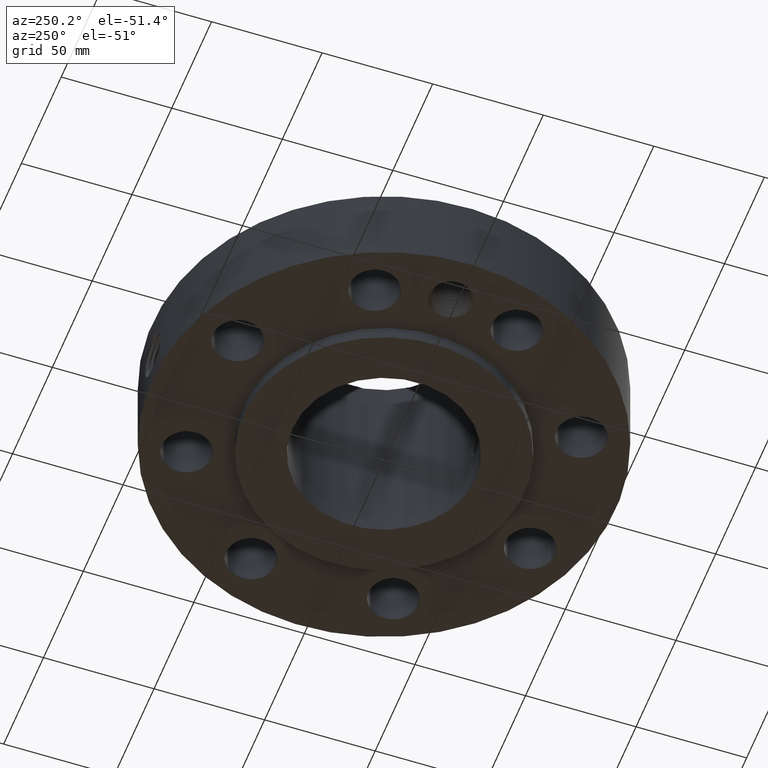
[diagram: clean part render]
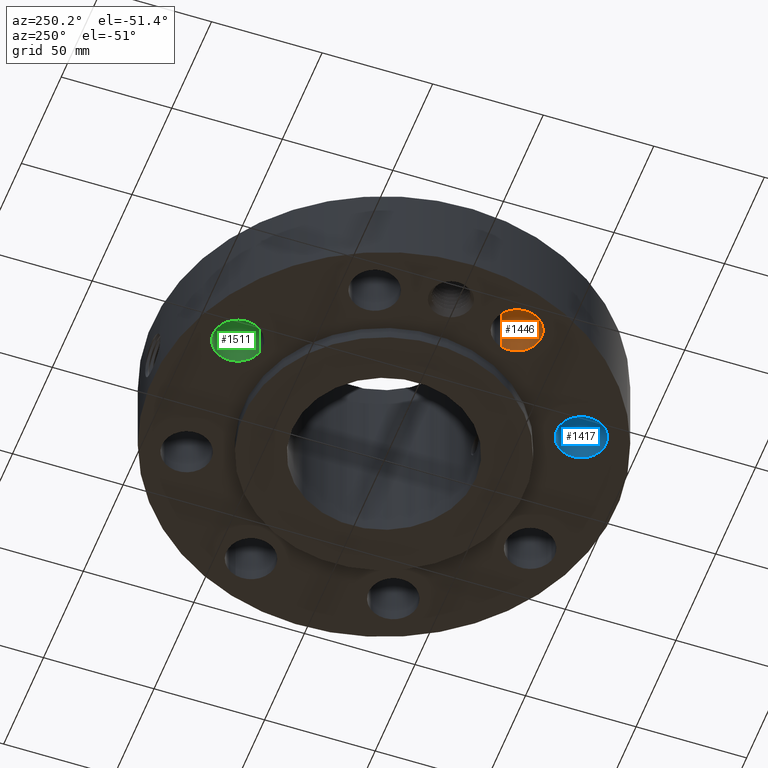
[diagram: same view with three faces highlighted in distinct colors, each labeled with its STEP entity id]
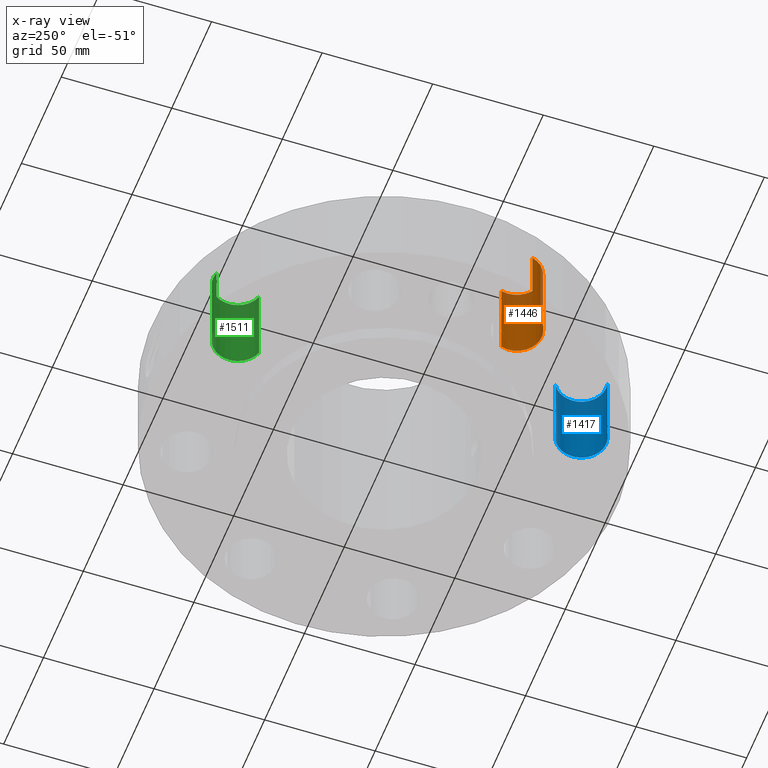
[diagram: x-ray of the same camera — body ghosted, the three highlighted faces saturated]
A machine part, auxiliary view with three faces highlighted in distinct colors.
The next image is the same camera in x-ray (body ghosted, the three faces saturated) — at least one of them is partly hidden behind the body in this view.
Their STEP definitions:

[orange] entity #1446 — the highlighted cylindrical surface (edge-blend (fillet) strip) has radius 11.176 mm, axis along (-0, 0, -1).
#296=AXIS2_PLACEMENT_3D('Circle Axis2P3D',#294,#295,$) ;
#622=AXIS2_PLACEMENT_3D('Circle Axis2P3D',#620,#621,$) ;
#1428=AXIS2_PLACEMENT_3D('Cylinder Axis2P3D',#1425,#1426,#1427) ;
#294=CARTESIAN_POINT('Axis2P3D Location',(-3.05804125262,-1.26668216113,0.250000000001)) ;
#298=CARTESIAN_POINT('Vertex',(-2.63583941543,-1.14280476743,0.250000000001)) ;
#300=CARTESIAN_POINT('Vertex',(-3.48024308982,-1.39055955484,0.250000000001)) ;
#615=CARTESIAN_POINT('Vertex',(-3.48024308982,-1.39055955484,1.75000000001)) ;
#617=CARTESIAN_POINT('Vertex',(-2.63583941543,-1.14280476743,1.75000000001)) ;
#620=CARTESIAN_POINT('Axis2P3D Location',(-3.05804125262,-1.26668216113,1.75000000001)) ;
#1425=CARTESIAN_POINT('Axis2P3D Location',(-3.05804125262,-1.26668216113,1.74606299213)) ;
#1430=CARTESIAN_POINT('Line Origine',(-2.63583941543,-1.14280476743,1.)) ;
#1435=CARTESIAN_POINT('Line Origine',(-3.48024308982,-1.39055955484,1.)) ;
#295=DIRECTION('Axis2P3D Direction',(0.,0.,-0.0393700787402)) ;
#621=DIRECTION('Axis2P3D Direction',(0.,0.,-0.0393700787402)) ;
#1426=DIRECTION('Axis2P3D Direction',(-0.,0.,-0.0393700787402)) ;
#1427=DIRECTION('Axis2P3D XDirection',(-0.0377775444876,-0.0110842335096,0.)) ;
#1431=DIRECTION('Vector Direction',(0.,0.,-0.0393700787402)) ;
#1436=DIRECTION('Vector Direction',(0.,0.,-0.0393700787402)) ;
#1432=VECTOR('Line Direction',#1431,0.0393700787402) ;
#1437=VECTOR('Line Direction',#1436,0.0393700787402) ;
#1441=ORIENTED_EDGE('',*,*,#1434,.F.) ;
#1442=ORIENTED_EDGE('',*,*,#302,.T.) ;
#1443=ORIENTED_EDGE('',*,*,#1439,.T.) ;
#1444=ORIENTED_EDGE('',*,*,#624,.F.) ;
#1446=ADVANCED_FACE('PartBody',(#1445),#1429,.F.) ;
#297=CIRCLE('generated circle',#296,0.440000000002) ;
#623=CIRCLE('generated circle',#622,0.440000000002) ;
#1429=CYLINDRICAL_SURFACE('generated cylinder',#1428,0.440000000002) ;
#302=EDGE_CURVE('',#299,#301,#297,.T.) ;
#624=EDGE_CURVE('',#618,#616,#623,.T.) ;
#1434=EDGE_CURVE('',#299,#618,#1433,.F.) ;
#1439=EDGE_CURVE('',#301,#616,#1438,.F.) ;
#1440=EDGE_LOOP('',(#1441,#1442,#1443,#1444)) ;
#1445=FACE_OUTER_BOUND('',#1440,.T.) ;
#1433=LINE('Line',#1430,#1432) ;
#1438=LINE('Line',#1435,#1437) ;
#299=VERTEX_POINT('',#298) ;
#301=VERTEX_POINT('',#300) ;
#616=VERTEX_POINT('',#615) ;
#618=VERTEX_POINT('',#617) ;

[blue] entity #1417 — the highlighted cylindrical surface (edge-blend (fillet) strip) has radius 11.176 mm, axis along (0, -0, -1).
#278=AXIS2_PLACEMENT_3D('Circle Axis2P3D',#276,#277,$) ;
#604=AXIS2_PLACEMENT_3D('Circle Axis2P3D',#602,#603,$) ;
#1399=AXIS2_PLACEMENT_3D('Cylinder Axis2P3D',#1396,#1397,#1398) ;
#276=CARTESIAN_POINT('Axis2P3D Location',(-1.26668216113,-3.05804125262,0.250000000001)) ;
#280=CARTESIAN_POINT('Vertex',(-1.05573492415,-2.67190492539,0.250000000001)) ;
#282=CARTESIAN_POINT('Vertex',(-1.47762939812,-3.44417757986,0.250000000001)) ;
#597=CARTESIAN_POINT('Vertex',(-1.47762939812,-3.44417757986,1.75000000001)) ;
#599=CARTESIAN_POINT('Vertex',(-1.05573492415,-2.67190492539,1.75000000001)) ;
#602=CARTESIAN_POINT('Axis2P3D Location',(-1.26668216113,-3.05804125262,1.75000000001)) ;
#1396=CARTESIAN_POINT('Axis2P3D Location',(-1.26668216113,-3.05804125262,1.74606299213)) ;
#1401=CARTESIAN_POINT('Line Origine',(-1.05573492415,-2.67190492539,1.)) ;
#1406=CARTESIAN_POINT('Line Origine',(-1.47762939812,-3.44417757986,1.)) ;
#277=DIRECTION('Axis2P3D Direction',(0.,0.,-0.0393700787402)) ;
#603=DIRECTION('Axis2P3D Direction',(0.,0.,-0.0393700787402)) ;
#1397=DIRECTION('Axis2P3D Direction',(0.,-0.,-0.0393700787402)) ;
#1398=DIRECTION('Axis2P3D XDirection',(-0.0188750212049,-0.0345504945626,0.)) ;
#1402=DIRECTION('Vector Direction',(0.,0.,-0.0393700787402)) ;
#1407=DIRECTION('Vector Direction',(0.,0.,-0.0393700787402)) ;
#1403=VECTOR('Line Direction',#1402,0.0393700787402) ;
#1408=VECTOR('Line Direction',#1407,0.0393700787402) ;
#1412=ORIENTED_EDGE('',*,*,#1405,.F.) ;
#1413=ORIENTED_EDGE('',*,*,#284,.T.) ;
#1414=ORIENTED_EDGE('',*,*,#1410,.T.) ;
#1415=ORIENTED_EDGE('',*,*,#606,.F.) ;
#1417=ADVANCED_FACE('PartBody',(#1416),#1400,.F.) ;
#279=CIRCLE('generated circle',#278,0.440000000002) ;
#605=CIRCLE('generated circle',#604,0.440000000002) ;
#1400=CYLINDRICAL_SURFACE('generated cylinder',#1399,0.440000000002) ;
#284=EDGE_CURVE('',#281,#283,#279,.T.) ;
#606=EDGE_CURVE('',#600,#598,#605,.T.) ;
#1405=EDGE_CURVE('',#281,#600,#1404,.F.) ;
#1410=EDGE_CURVE('',#283,#598,#1409,.F.) ;
#1411=EDGE_LOOP('',(#1412,#1413,#1414,#1415)) ;
#1416=FACE_OUTER_BOUND('',#1411,.T.) ;
#1404=LINE('Line',#1401,#1403) ;
#1409=LINE('Line',#1406,#1408) ;
#281=VERTEX_POINT('',#280) ;
#283=VERTEX_POINT('',#282) ;
#598=VERTEX_POINT('',#597) ;
#600=VERTEX_POINT('',#599) ;

[green] entity #1511 — the highlighted cylindrical surface (edge-blend (fillet) strip) has radius 11.176 mm, axis along (0, 0, -1).
#341=AXIS2_PLACEMENT_3D('Circle Axis2P3D',#339,#340,$) ;
#649=AXIS2_PLACEMENT_3D('Circle Axis2P3D',#647,#648,$) ;
#1486=AXIS2_PLACEMENT_3D('Cylinder Axis2P3D',#1483,#1484,#1485) ;
#334=CARTESIAN_POINT('Vertex',(-1.14280476743,2.63583941543,0.250000000001)) ;
#336=CARTESIAN_POINT('Vertex',(-1.39055955484,3.48024308982,0.250000000001)) ;
#339=CARTESIAN_POINT('Axis2P3D Location',(-1.26668216113,3.05804125262,0.250000000001)) ;
#647=CARTESIAN_POINT('Axis2P3D Location',(-1.26668216113,3.05804125262,1.75000000001)) ;
#651=CARTESIAN_POINT('Vertex',(-1.39055955484,3.48024308982,1.75000000001)) ;
#653=CARTESIAN_POINT('Vertex',(-1.14280476743,2.63583941543,1.75000000001)) ;
#1483=CARTESIAN_POINT('Axis2P3D Location',(-1.26668216113,3.05804125262,1.74606299213)) ;
#1488=CARTESIAN_POINT('Line Origine',(-1.14280476743,2.63583941543,1.)) ;
#1493=CARTESIAN_POINT('Line Origine',(-1.39055955484,3.48024308982,1.)) ;
#340=DIRECTION('Axis2P3D Direction',(0.,0.,-0.0393700787402)) ;
#648=DIRECTION('Axis2P3D Direction',(0.,0.,-0.0393700787402)) ;
#1484=DIRECTION('Axis2P3D Direction',(0.,0.,-0.0393700787402)) ;
#1485=DIRECTION('Axis2P3D XDirection',(-0.0110842335096,0.0377775444876,0.)) ;
#1489=DIRECTION('Vector Direction',(0.,0.,-0.0393700787402)) ;
#1494=DIRECTION('Vector Direction',(0.,0.,-0.0393700787402)) ;
#1490=VECTOR('Line Direction',#1489,0.0393700787402) ;
#1495=VECTOR('Line Direction',#1494,0.0393700787402) ;
#1506=ORIENTED_EDGE('',*,*,#1497,.F.) ;
#1507=ORIENTED_EDGE('',*,*,#343,.T.) ;
#1508=ORIENTED_EDGE('',*,*,#1492,.T.) ;
#1509=ORIENTED_EDGE('',*,*,#655,.F.) ;
#1511=ADVANCED_FACE('PartBody',(#1510),#1487,.F.) ;
#342=CIRCLE('generated circle',#341,0.440000000002) ;
#650=CIRCLE('generated circle',#649,0.440000000002) ;
#1487=CYLINDRICAL_SURFACE('generated cylinder',#1486,0.440000000002) ;
#343=EDGE_CURVE('',#337,#335,#342,.T.) ;
#655=EDGE_CURVE('',#652,#654,#650,.T.) ;
#1492=EDGE_CURVE('',#335,#654,#1491,.F.) ;
#1497=EDGE_CURVE('',#337,#652,#1496,.F.) ;
#1505=EDGE_LOOP('',(#1506,#1507,#1508,#1509)) ;
#1510=FACE_OUTER_BOUND('',#1505,.T.) ;
#1491=LINE('Line',#1488,#1490) ;
#1496=LINE('Line',#1493,#1495) ;
#335=VERTEX_POINT('',#334) ;
#337=VERTEX_POINT('',#336) ;
#652=VERTEX_POINT('',#651) ;
#654=VERTEX_POINT('',#653) ;